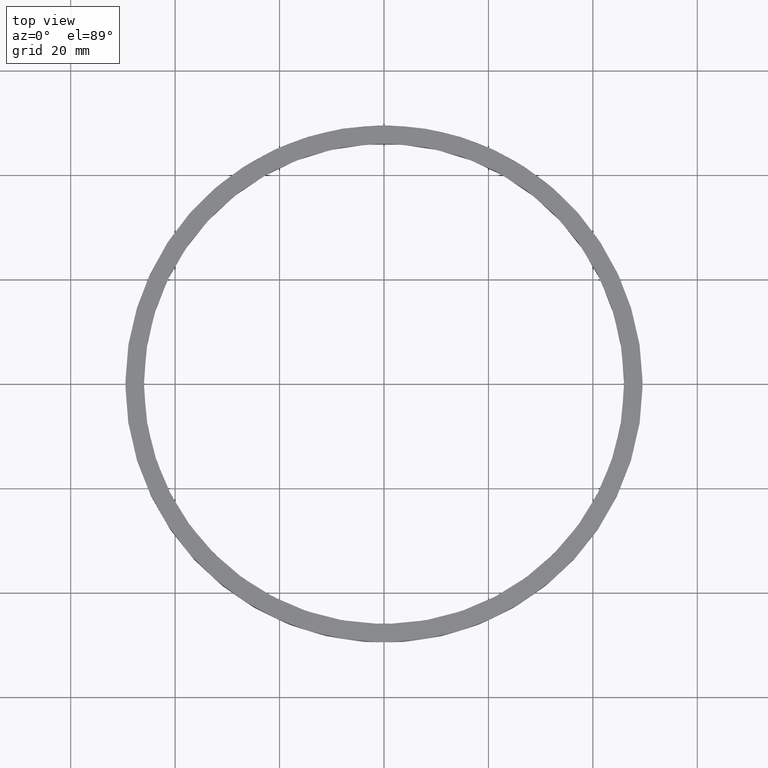
[diagram: clean part render]
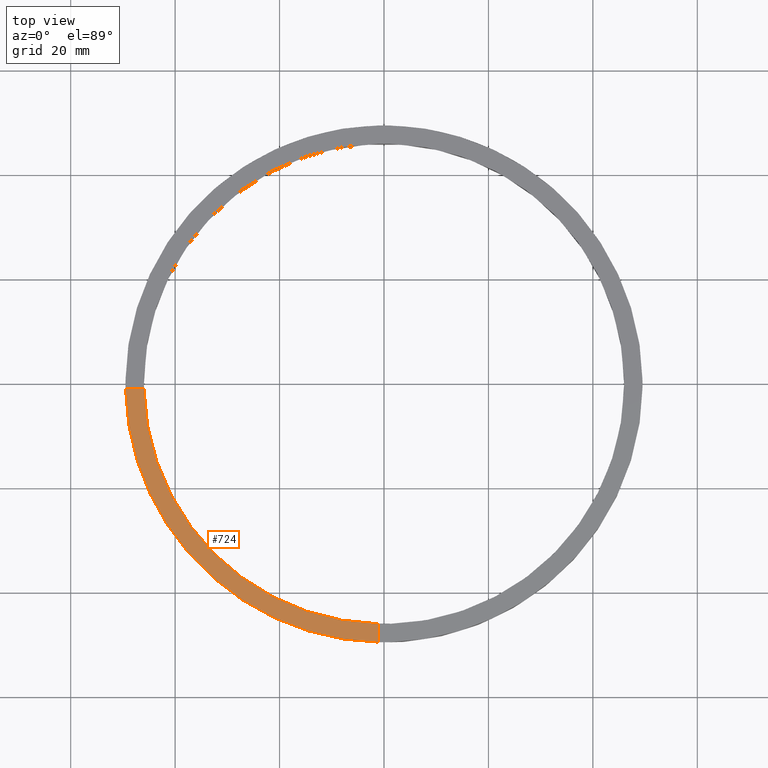
[diagram: same view with one face highlighted and labeled with its STEP entity id]
A machine part, top view. The second image highlights one B-rep face of the part: STEP entity #724.
In plain terms, the highlighted planar face has unit normal (0, 0, 1).
Its self-contained STEP definition (entity closure, byte-faithful):
#78 = VECTOR ( 'NONE', #139, 1000.000000000000000 ) ;
#90 = AXIS2_PLACEMENT_3D ( 'NONE', #221, #205, #676 ) ;
#93 = EDGE_CURVE ( 'NONE', #424, #163, #176, .T. ) ;
#102 = DIRECTION ( 'NONE',  ( 1.000000000000000000, 0.000000000000000000, -0.000000000000000000 ) ) ;
#139 = DIRECTION ( 'NONE',  ( 1.000000000000000000, 1.951563910473907735E-16, -0.000000000000000000 ) ) ;
#146 = DIRECTION ( 'NONE',  ( 1.000000000000000000, 0.000000000000000000, 0.000000000000000000 ) ) ;
#163 = VERTEX_POINT ( 'NONE', #290 ) ;
#173 = CARTESIAN_POINT ( 'NONE',  ( -45.98912915026767223, -1.000000000000030420, 4.500000000000000000 ) ) ;
#176 = CIRCLE ( 'NONE', #90, 46.00000000000000000 ) ;
#185 = VERTEX_POINT ( 'NONE', #370 ) ;
#196 = CIRCLE ( 'NONE', #700, 49.50000000000000711 ) ;
#205 = DIRECTION ( 'NONE',  ( 0.000000000000000000, 0.000000000000000000, 1.000000000000000000 ) ) ;
#221 = CARTESIAN_POINT ( 'NONE',  ( 0.000000000000000000, 0.000000000000000000, 4.500000000000000000 ) ) ;
#262 = ORIENTED_EDGE ( 'NONE', *, *, #755, .F. ) ;
#290 = CARTESIAN_POINT ( 'NONE',  ( -1.000000000000157430, -45.98912915026767223, 4.500000000000000000 ) ) ;
#343 = LINE ( 'NONE', #516, #599 ) ;
#346 = LINE ( 'NONE', #387, #78 ) ;
#370 = CARTESIAN_POINT ( 'NONE',  ( -1.000000000000156986, -49.48989795907849043, 4.500000000000000000 ) ) ;
#382 = ORIENTED_EDGE ( 'NONE', *, *, #629, .T. ) ;
#387 = CARTESIAN_POINT ( 'NONE',  ( -39.50000000000019185, -1.000000000000029310, 4.500000000000000000 ) ) ;
#388 = DIRECTION ( 'NONE',  ( 1.301042606982605074E-16, -1.000000000000000000, 0.000000000000000000 ) ) ;
#392 = ORIENTED_EDGE ( 'NONE', *, *, #93, .F. ) ;
#395 = ORIENTED_EDGE ( 'NONE', *, *, #744, .F. ) ;
#424 = VERTEX_POINT ( 'NONE', #173 ) ;
#516 = CARTESIAN_POINT ( 'NONE',  ( -1.000000000000158318, -39.50000000000018474, 4.500000000000000000 ) ) ;
#535 = CARTESIAN_POINT ( 'NONE',  ( 0.000000000000000000, 0.000000000000000000, 4.500000000000000000 ) ) ;
#539 = VERTEX_POINT ( 'NONE', #562 ) ;
#562 = CARTESIAN_POINT ( 'NONE',  ( -49.48989795907849043, -1.000000000000031308, 4.500000000000000000 ) ) ;
#593 = FACE_OUTER_BOUND ( 'NONE', #683, .T. ) ;
#597 = PLANE ( 'NONE',  #702 ) ;
#599 = VECTOR ( 'NONE', #388, 1000.000000000000000 ) ;
#608 = DIRECTION ( 'NONE',  ( 0.000000000000000000, 0.000000000000000000, 1.000000000000000000 ) ) ;
#629 = EDGE_CURVE ( 'NONE', #539, #185, #196, .T. ) ;
#676 = DIRECTION ( 'NONE',  ( 1.000000000000000000, 0.000000000000000000, 0.000000000000000000 ) ) ;
#683 = EDGE_LOOP ( 'NONE', ( #262, #392, #395, #382 ) ) ;
#688 = CARTESIAN_POINT ( 'NONE',  ( 0.000000000000000000, 0.000000000000000000, 4.500000000000000000 ) ) ;
#700 = AXIS2_PLACEMENT_3D ( 'NONE', #535, #608, #146 ) ;
#702 = AXIS2_PLACEMENT_3D ( 'NONE', #688, #747, #102 ) ;
#724 = ADVANCED_FACE ( 'NONE', ( #593 ), #597, .T. ) ;
#744 = EDGE_CURVE ( 'NONE', #539, #424, #346, .T. ) ;
#747 = DIRECTION ( 'NONE',  ( 0.000000000000000000, 0.000000000000000000, 1.000000000000000000 ) ) ;
#755 = EDGE_CURVE ( 'NONE', #163, #185, #343, .T. ) ;